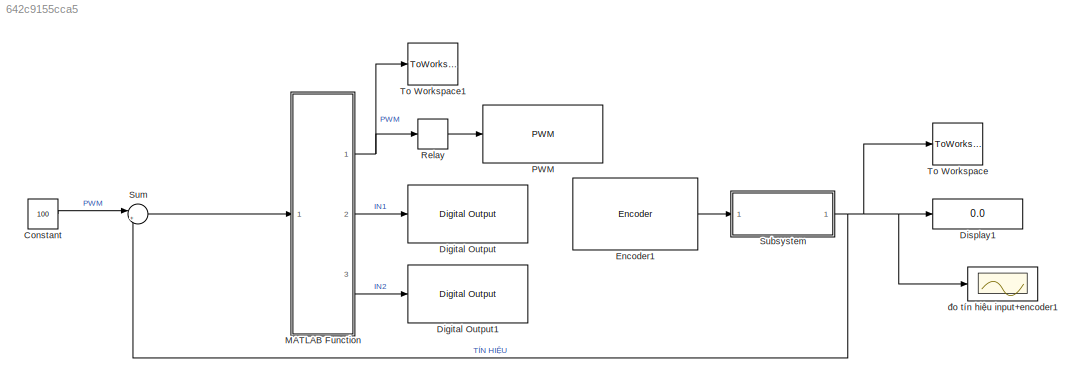
MODEL slx_642c9155cca5
KIND model
CONFIG AbsTol = auto
CONFIG EnableMultiTasking = on
CONFIG FixedStep = 0.01
CONFIG MaxStep = auto
CONFIG MinStep = auto
CONFIG RelTol = 1e-3
CONFIG SampleTimeConstraint = Unconstrained
CONFIG SolverName = FixedStepAuto
CONFIG StartTime = 0.0
CONFIG StopTime = 60
BLOCK [Constant] Constant
  Value = 100
BLOCK [Reference] Digital Output  REF=arduinolib/Digital Output
  Ports = [1]
  SourceBlock = arduinolib/Digital Output
  SourceProductBaseCode = ARDUINO
  SourceType = Arduino Digital Output
BLOCK [Reference] Digital Output1  REF=arduinolib/Digital Output
  Ports = [1]
  SourceBlock = arduinolib/Digital Output
  SourceProductBaseCode = ARDUINO
  SourceType = Arduino Digital Output
BLOCK [Display] Display1
  Decimation = 1
  Ports = [1]
BLOCK [Reference] Encoder1  REF=arduinosensorlib/Encoder
  Ports = [0, 1]
  SourceBlock = arduinosensorlib/Encoder
  SourceProductBaseCode = ARDUINO
  SourceType = Arduino Rotary Encoder
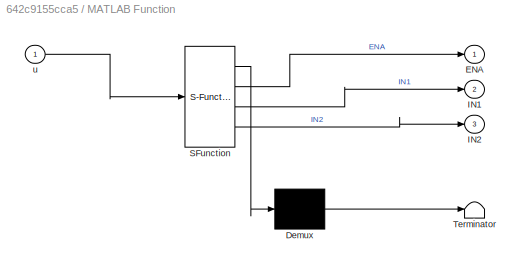
BLOCK [SubSystem] MATLAB Function
  ErrorFcn = Stateflow.Translate.translate
  PermitHierarchicalResolution = ExplicitOnly
  Ports = [1, 3]
  RequestExecContextInheritance = off
  SFBlockType = MATLAB Function
  TreatAsAtomicUnit = on
BLOCK [Demux] MATLAB Function/ Demux 
  Outputs = 1
  Ports = [1, 1]
BLOCK [S-Function] MATLAB Function/ SFunction 
  EnableBusSupport = on
  FunctionName = sf_sfun
  PortCounts = [1 4]
  Ports = [1, 4]
  SFcnIsStateOwnerBlock = off
  SFunctionDeploymentMode = off
  Tag = Stateflow S-Function 2
BLOCK [Terminator] MATLAB Function/ Terminator 
BLOCK [Outport] MATLAB Function/ENA
BLOCK [Outport] MATLAB Function/IN1
  Port = 2
BLOCK [Outport] MATLAB Function/IN2
  Port = 3
BLOCK [Inport] MATLAB Function/u
BLOCK [Reference] PWM  REF=arduinolib/PWM
  Ports = [1]
  SourceBlock = arduinolib/PWM
  SourceProductBaseCode = ARDUINO
  SourceType = Arduino PWM
BLOCK [Relay] Relay
  OnOutputValue = 100
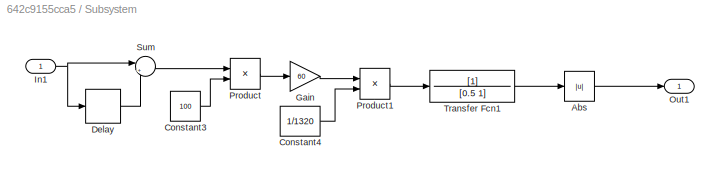
BLOCK [SubSystem] Subsystem
  Ports = [1, 1]
  RequestExecContextInheritance = off
BLOCK [Abs] Subsystem/Abs
  SaturateOnIntegerOverflow = off
BLOCK [Constant] Subsystem/Constant3
  Value = 100
BLOCK [Constant] Subsystem/Constant4
  Value = 1/1320
BLOCK [Delay] Subsystem/Delay
  DelayLength = 1
  InputPortMap = u0
  Ports = [1, 1]
BLOCK [Gain] Subsystem/Gain
  Gain = 60
BLOCK [Inport] Subsystem/In1
BLOCK [Outport] Subsystem/Out1
BLOCK [Product] Subsystem/Product
  Ports = [2, 1]
BLOCK [Product] Subsystem/Product1
  OutDataTypeStr = double
  Ports = [2, 1]
BLOCK [Sum] Subsystem/Sum
  Inputs = |+-
  Ports = [2, 1]
BLOCK [TransferFcn] Subsystem/Transfer Fcn1
  Denominator = [0.5 1]
BLOCK [Sum] Sum
  Inputs = |+-
  Ports = [2, 1]
BLOCK [ToWorkspace] To Workspace
  MaxDataPoints = inf
  Ports = [1]
  SampleTime = -1
  Save2DSignal = 2-D array (concatenate along first dimension)
  VariableName = OUTPUT
BLOCK [ToWorkspace] To Workspace1
  MaxDataPoints = inf
  Ports = [1]
  SampleTime = -1
  Save2DSignal = 2-D array (concatenate along first dimension)
  VariableName = INPUT
BLOCK [Scope] đo tín hiệu input+encoder1
  Floating = off
  NumInputPorts = 1
  Ports = [1]
  ScopeSpecificationString = Simulink.scopes.TimeScopeBlockCfg('CurrentConfiguration', extmgr.ConfigurationSet(extmgr.Configuration('Core','General UI',true,'FigureColor',[1 1 1]),extmgr.Configuration('Core','Source UI',true),extmgr.Configuration('Sources','WiredSimulink',true,'DataLoggingVariableName','ScopeData1'),extmgr.Configuration('Visuals','Time Domain',true,'SerializedDisplays',{struct('MinYLimReal','0','MaxYLimReal',...<+1809ch>
LINE Constant:1 -> Sum:1
LINE Encoder1:1 -> Subsystem:1
NET MATLAB Function:1 -> Relay:1, To Workspace1:1
LINE MATLAB Function:2 -> Digital Output:1
LINE MATLAB Function:3 -> Digital Output1:1
LINE Relay:1 -> PWM:1
LINE Subsystem/Abs:1 -> Subsystem/Out1:1
LINE Subsystem/Constant3:1 -> Subsystem/Product:2
LINE Subsystem/Constant4:1 -> Subsystem/Product1:2
LINE Subsystem/Delay:1 -> Subsystem/Sum:2
LINE Subsystem/Gain:1 -> Subsystem/Product1:1
NET Subsystem/In1:1 -> Subsystem/Delay:1, Subsystem/Sum:1
LINE Subsystem/Product1:1 -> Subsystem/Transfer Fcn1:1
LINE Subsystem/Product:1 -> Subsystem/Gain:1
LINE Subsystem/Sum:1 -> Subsystem/Product:1
LINE Subsystem/Transfer Fcn1:1 -> Subsystem/Abs:1
NET Subsystem:1 -> Display1:1, Sum:2, To Workspace:1, đo tín hiệu input+encoder1:1
LINE Sum:1 -> MATLAB Function:1
note: NET lines group one-source signal fan-out (src -> all destinations, sorted); 1:1 wires keep LINE
CHART MATLAB Function states=1 transitions=1
  STATE_LABEL 'eML_blk_kernel()'
  STATE_LABEL 'SCRIPT:\nfunction [ENA,IN1,IN2] = fcn(u)\n\nENA=abs(u);\nif u<0 \n    IN1=1; IN2=0;\nelseif u>0\n    IN1=0; IN2=1;\nelse \n    IN1=0; IN2=0;\nend'
CHART  states=0 transitions=0
